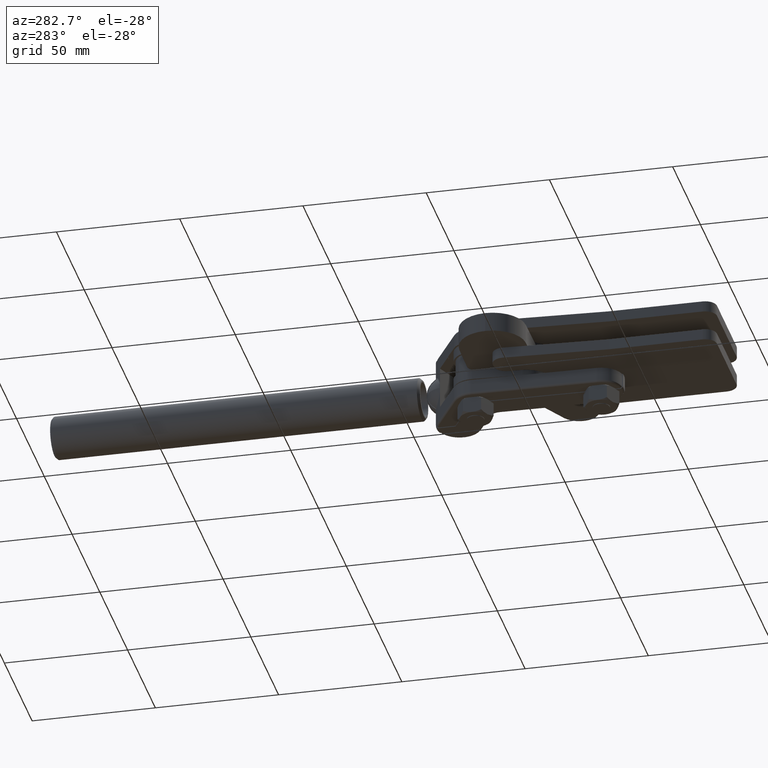
[diagram: clean part render]
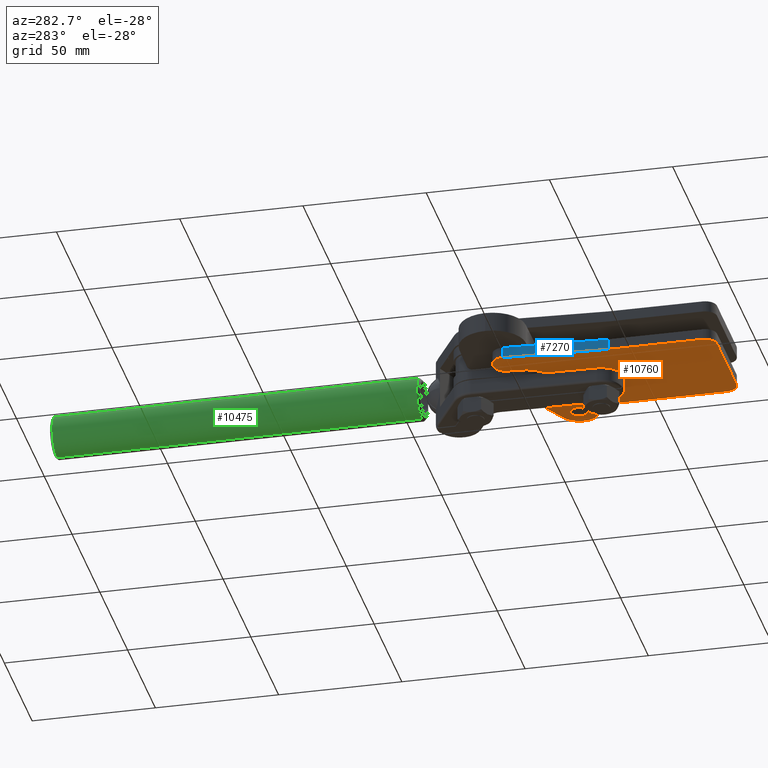
[diagram: same view with three faces highlighted in distinct colors, each labeled with its STEP entity id]
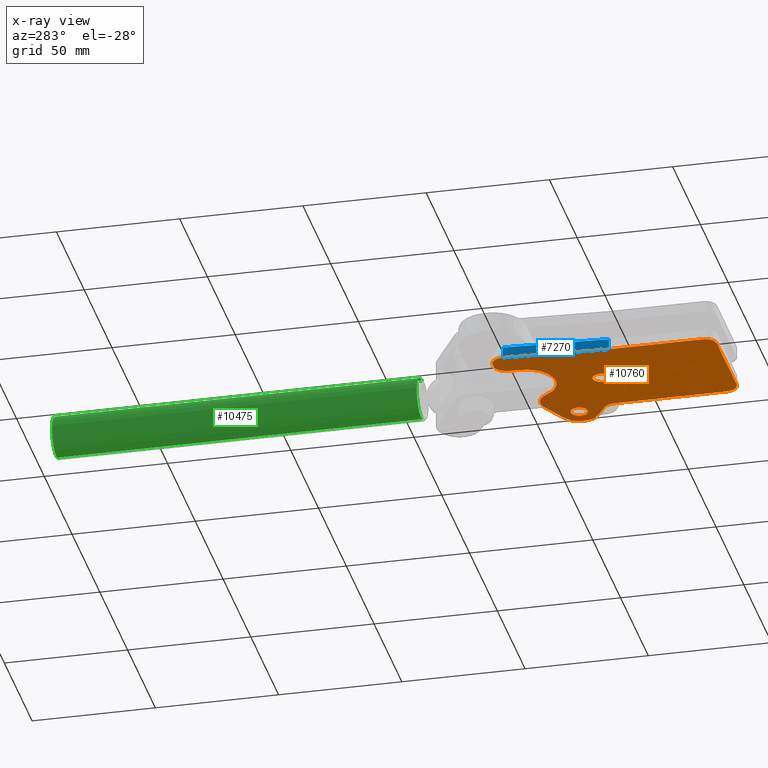
[diagram: x-ray of the same camera — body ghosted, the three highlighted faces saturated]
A machine part, auxiliary view with three faces highlighted in distinct colors.
The next image is the same camera in x-ray (body ghosted, the three faces saturated) — at least one of them is partly hidden behind the body in this view.
Their STEP definitions:

[orange] entity #10760 — the highlighted planar face has unit normal (0, 0, 1).
#86 = LINE ( 'NONE', #188, #7089 ) ;
#188 = CARTESIAN_POINT ( 'NONE',  ( -25.22318336174694400, 85.32189925550417800, -7.999999999999994700 ) ) ;
#212 = CARTESIAN_POINT ( 'NONE',  ( -13.74116381830509100, 85.86167978121476100, -7.999999999999994700 ) ) ;
#370 = DIRECTION ( 'NONE',  ( -1.000000000000000000, 0.0000000000000000000, 0.0000000000000000000 ) ) ;
#385 = DIRECTION ( 'NONE',  ( 0.0000000000000000000, 0.0000000000000000000, 1.000000000000000000 ) ) ;
#425 = CARTESIAN_POINT ( 'NONE',  ( 17.10181000258580400, 5.139080936063071400, -7.999999999999994700 ) ) ;
#475 = VECTOR ( 'NONE', #5244, 1000.000000000000100 ) ;
#528 = FACE_OUTER_BOUND ( 'NONE', #3657, .T. ) ;
#759 = VECTOR ( 'NONE', #5476, 1000.000000000000000 ) ;
#795 = ORIENTED_EDGE ( 'NONE', *, *, #9614, .F. ) ;
#854 = VERTEX_POINT ( 'NONE', #6194 ) ;
#855 = DIRECTION ( 'NONE',  ( 1.000000000000000000, 0.0000000000000000000, 0.0000000000000000000 ) ) ;
#858 = ORIENTED_EDGE ( 'NONE', *, *, #9278, .F. ) ;
#883 = DIRECTION ( 'NONE',  ( -0.0000000000000000000, -0.0000000000000000000, -1.000000000000000000 ) ) ;
#886 = CIRCLE ( 'NONE', #4379, 4.765655449276774600 ) ;
#907 = DIRECTION ( 'NONE',  ( 0.0000000000000000000, 0.0000000000000000000, 1.000000000000000000 ) ) ;
#924 = CARTESIAN_POINT ( 'NONE',  ( -18.09626604559854700, 4.864683064977837600, -7.999999999999996400 ) ) ;
#1150 = VERTEX_POINT ( 'NONE', #9547 ) ;
#1228 = VECTOR ( 'NONE', #4491, 1000.000000000000000 ) ;
#1252 = ORIENTED_EDGE ( 'NONE', *, *, #9390, .F. ) ;
#1257 = AXIS2_PLACEMENT_3D ( 'NONE', #1965, #907, #8664 ) ;
#1265 = DIRECTION ( 'NONE',  ( 1.000000000000000000, 0.0000000000000000000, -0.0000000000000000000 ) ) ;
#1285 = DIRECTION ( 'NONE',  ( 0.0000000000000000000, 0.0000000000000000000, 1.000000000000000000 ) ) ;
#1325 = CARTESIAN_POINT ( 'NONE',  ( -20.23095044539636000, 85.60000000000006500, -7.999999999999994700 ) ) ;
#1337 = AXIS2_PLACEMENT_3D ( 'NONE', #924, #883, #855 ) ;
#1379 = DIRECTION ( 'NONE',  ( -1.000000000000000000, 4.636317856435539100E-015, 0.0000000000000000000 ) ) ;
#1477 = LINE ( 'NONE', #10220, #6671 ) ;
#1507 = CARTESIAN_POINT ( 'NONE',  ( 3.485000000000014100, 51.10000000000005800, -7.999999999999994700 ) ) ;
#1526 = LINE ( 'NONE', #4069, #1228 ) ;
#1557 = PLANE ( 'NONE',  #6081 ) ;
#1674 = CARTESIAN_POINT ( 'NONE',  ( 22.13999999999999300, 5.000000000000024900, -7.999999999999994700 ) ) ;
#1844 = CIRCLE ( 'NONE', #9749, 3.484999999999998500 ) ;
#1965 = CARTESIAN_POINT ( 'NONE',  ( 1.387778780781445700E-014, 51.10000000000005800, -7.999999999999994700 ) ) ;
#2059 = ORIENTED_EDGE ( 'NONE', *, *, #8940, .T. ) ;
#2068 = ORIENTED_EDGE ( 'NONE', *, *, #9040, .F. ) ;
#2092 = DIRECTION ( 'NONE',  ( 1.000000000000000000, 0.0000000000000000000, 0.0000000000000000000 ) ) ;
#2237 = CARTESIAN_POINT ( 'NONE',  ( 25.90000000000001600, 65.90000000000006300, -7.999999999999994700 ) ) ;
#2359 = ORIENTED_EDGE ( 'NONE', *, *, #9015, .T. ) ;
#2390 = CARTESIAN_POINT ( 'NONE',  ( -18.73431149207793200, 90.60000000000003700, -7.999999999999994700 ) ) ;
#2406 = DIRECTION ( 'NONE',  ( 1.000000000000000000, 0.0000000000000000000, 0.0000000000000000000 ) ) ;
#2541 = CARTESIAN_POINT ( 'NONE',  ( 25.90000000000001600, 65.90000000000006300, -7.999999999999994700 ) ) ;
#2608 = AXIS2_PLACEMENT_3D ( 'NONE', #425, #385, #370 ) ;
#2801 = CIRCLE ( 'NONE', #2608, 5.040109319927548600 ) ;
#2804 = VERTEX_POINT ( 'NONE', #8529 ) ;
#2924 = LINE ( 'NONE', #5257, #475 ) ;
#3061 = VERTEX_POINT ( 'NONE', #10063 ) ;
#3064 = DIRECTION ( 'NONE',  ( -0.8762541809428534600, 0.4818491572890514200, 0.0000000000000000000 ) ) ;
#3069 = ORIENTED_EDGE ( 'NONE', *, *, #8979, .F. ) ;
#3077 = ORIENTED_EDGE ( 'NONE', *, *, #9561, .F. ) ;
#3081 = CIRCLE ( 'NONE', #10693, 8.000000000000028400 ) ;
#3213 = LINE ( 'NONE', #5587, #759 ) ;
#3257 = FACE_BOUND ( 'NONE', #4740, .T. ) ;
#3267 = ORIENTED_EDGE ( 'NONE', *, *, #9356, .F. ) ;
#3345 = CIRCLE ( 'NONE', #8946, 11.99999999999997300 ) ;
#3483 = CARTESIAN_POINT ( 'NONE',  ( -22.86000000000003900, 42.90000000000002700, -7.999999999999994700 ) ) ;
#3493 = VECTOR ( 'NONE', #1379, 1000.000000000000000 ) ;
#3594 = VERTEX_POINT ( 'NONE', #1674 ) ;
#3657 = EDGE_LOOP ( 'NONE', ( #3069, #11368, #2059, #6524, #4839, #2359, #3778, #8914, #7757, #2068, #5630, #3267, #1252, #858, #6944, #3077, #795, #10406 ) ) ;
#3778 = ORIENTED_EDGE ( 'NONE', *, *, #8014, .F. ) ;
#3841 = DIRECTION ( 'NONE',  ( -0.05233595624293762400, 0.9986295347545741700, -0.0000000000000000000 ) ) ;
#3975 = CIRCLE ( 'NONE', #7025, 4.999999999999971600 ) ;
#4066 = DIRECTION ( 'NONE',  ( 0.0000000000000000000, 0.0000000000000000000, 1.000000000000000000 ) ) ;
#4069 = CARTESIAN_POINT ( 'NONE',  ( 22.14000000000001800, 5.000000000000024900, -7.999999999999994700 ) ) ;
#4080 = DIRECTION ( 'NONE',  ( -1.000000000000000000, 0.0000000000000000000, 0.0000000000000000000 ) ) ;
#4095 = DIRECTION ( 'NONE',  ( -0.0000000000000000000, -0.0000000000000000000, -1.000000000000000000 ) ) ;
#4168 = CARTESIAN_POINT ( 'NONE',  ( -18.73431149207793200, 90.60000000000003700, -7.999999999999994700 ) ) ;
#4203 = EDGE_LOOP ( 'NONE', ( #6099, #10135 ) ) ;
#4215 = VECTOR ( 'NONE', #8673, 1000.000000000000000 ) ;
#4235 = VERTEX_POINT ( 'NONE', #9274 ) ;
#4266 = DIRECTION ( 'NONE',  ( 1.000000000000000000, 0.0000000000000000000, 0.0000000000000000000 ) ) ;
#4291 = DIRECTION ( 'NONE',  ( -0.0000000000000000000, -0.0000000000000000000, -1.000000000000000000 ) ) ;
#4307 = CARTESIAN_POINT ( 'NONE',  ( -18.09626604559854700, 4.864683064977837600, -7.999999999999996400 ) ) ;
#4358 = CARTESIAN_POINT ( 'NONE',  ( 30.43780133561243100, 59.31149796702514700, -7.999999999999994700 ) ) ;
#4379 = AXIS2_PLACEMENT_3D ( 'NONE', #4307, #4291, #4266 ) ;
#4405 = CARTESIAN_POINT ( 'NONE',  ( -20.23095044539636000, 85.60000000000006500, -7.999999999999994700 ) ) ;
#4459 = AXIS2_PLACEMENT_3D ( 'NONE', #4405, #4710, #7376 ) ;
#4491 = DIRECTION ( 'NONE',  ( 7.563231907314425800E-017, 1.000000000000000000, 0.0000000000000000000 ) ) ;
#4673 = VERTEX_POINT ( 'NONE', #7822 ) ;
#4710 = DIRECTION ( 'NONE',  ( 0.0000000000000000000, 0.0000000000000000000, 1.000000000000000000 ) ) ;
#4722 = CIRCLE ( 'NONE', #8198, 8.000000000000017800 ) ;
#4740 = EDGE_LOOP ( 'NONE', ( #8145, #5814 ) ) ;
#4839 = ORIENTED_EDGE ( 'NONE', *, *, #9222, .T. ) ;
#4932 = CARTESIAN_POINT ( 'NONE',  ( 22.41500000000001700, 65.90000000000006300, -7.999999999999994700 ) ) ;
#5023 = CARTESIAN_POINT ( 'NONE',  ( -25.23095044539633100, 85.60000000000006500, -7.999999999999994700 ) ) ;
#5244 = DIRECTION ( 'NONE',  ( 0.8235627541218609700, 0.5672251669515511200, 0.0000000000000000000 ) ) ;
#5257 = CARTESIAN_POINT ( 'NONE',  ( 24.16387416524221300, 54.99035866240751600, -7.999999999999994700 ) ) ;
#5298 = CARTESIAN_POINT ( 'NONE',  ( 19.75479325831245000, 78.40899901904610700, -7.999999999999994700 ) ) ;
#5313 = CARTESIAN_POINT ( 'NONE',  ( 29.75479325831242500, 72.91003344754288700, -7.999999999999994700 ) ) ;
#5434 = FACE_BOUND ( 'NONE', #4203, .T. ) ;
#5476 = DIRECTION ( 'NONE',  ( -1.000000000000000000, 0.0000000000000000000, 0.0000000000000000000 ) ) ;
#5587 = CARTESIAN_POINT ( 'NONE',  ( -20.23095044539636000, 0.1000000000000445000, -7.999999999999994700 ) ) ;
#5613 = DIRECTION ( 'NONE',  ( 1.000000000000000000, 0.0000000000000000000, 0.0000000000000000000 ) ) ;
#5616 = AXIS2_PLACEMENT_3D ( 'NONE', #7950, #4095, #4080 ) ;
#5630 = ORIENTED_EDGE ( 'NONE', *, *, #9333, .F. ) ;
#5684 = AXIS2_PLACEMENT_3D ( 'NONE', #9106, #4066, #5613 ) ;
#5814 = ORIENTED_EDGE ( 'NONE', *, *, #8172, .T. ) ;
#5954 = LINE ( 'NONE', #4168, #3493 ) ;
#6081 = AXIS2_PLACEMENT_3D ( 'NONE', #1325, #1285, #1265 ) ;
#6099 = ORIENTED_EDGE ( 'NONE', *, *, #7464, .F. ) ;
#6116 = AXIS2_PLACEMENT_3D ( 'NONE', #2237, #10047, #10944 ) ;
#6194 = CARTESIAN_POINT ( 'NONE',  ( -20.23095044539636000, 90.60000000000003700, -7.999999999999994700 ) ) ;
#6281 = VERTEX_POINT ( 'NONE', #4358 ) ;
#6447 = CIRCLE ( 'NONE', #6116, 3.484999999999998500 ) ;
#6524 = ORIENTED_EDGE ( 'NONE', *, *, #9583, .T. ) ;
#6565 = CIRCLE ( 'NONE', #1257, 3.485000000000000300 ) ;
#6671 = VECTOR ( 'NONE', #3064, 1000.000000000000200 ) ;
#6882 = VERTEX_POINT ( 'NONE', #4932 ) ;
#6938 = CIRCLE ( 'NONE', #11493, 3.485000000000000300 ) ;
#6944 = ORIENTED_EDGE ( 'NONE', *, *, #11133, .F. ) ;
#6946 = VERTEX_POINT ( 'NONE', #3483 ) ;
#6952 = EDGE_CURVE ( 'NONE', #6882, #7318, #6447, .T. ) ;
#7025 = AXIS2_PLACEMENT_3D ( 'NONE', #9700, #10040, #2406 ) ;
#7089 = VECTOR ( 'NONE', #7669, 1000.000000000000100 ) ;
#7163 = CARTESIAN_POINT ( 'NONE',  ( 29.38500000000001600, 65.90000000000006300, -7.999999999999994700 ) ) ;
#7318 = VERTEX_POINT ( 'NONE', #7163 ) ;
#7320 = CARTESIAN_POINT ( 'NONE',  ( -22.86000000000004200, 85.60000000000006500, -7.999999999999994700 ) ) ;
#7374 = VERTEX_POINT ( 'NONE', #5313 ) ;
#7376 = DIRECTION ( 'NONE',  ( 1.000000000000000000, 0.0000000000000000000, 0.0000000000000000000 ) ) ;
#7381 = CIRCLE ( 'NONE', #4459, 4.999999999999971600 ) ;
#7464 = EDGE_CURVE ( 'NONE', #7318, #6882, #1844, .T. ) ;
#7493 = DIRECTION ( 'NONE',  ( 1.000000000000000000, 0.0000000000000000000, 0.0000000000000000000 ) ) ;
#7649 = DIRECTION ( 'NONE',  ( 0.0000000000000000000, 0.0000000000000000000, 1.000000000000000000 ) ) ;
#7667 = CARTESIAN_POINT ( 'NONE',  ( 1.387778780781445700E-014, 51.10000000000005800, -7.999999999999994700 ) ) ;
#7669 = DIRECTION ( 'NONE',  ( -0.05562044978973303100, 0.9984519846067649900, 0.0000000000000000000 ) ) ;
#7757 = ORIENTED_EDGE ( 'NONE', *, *, #9141, .F. ) ;
#7822 = CARTESIAN_POINT ( 'NONE',  ( -13.74116381830506800, 85.86167978121476100, -7.999999999999994700 ) ) ;
#7950 = CARTESIAN_POINT ( 'NONE',  ( 26.82547973616696200, 51.12593348861386700, -7.999999999999994700 ) ) ;
#8014 = EDGE_CURVE ( 'NONE', #8303, #1150, #3975, .T. ) ;
#8034 = CARTESIAN_POINT ( 'NONE',  ( 22.14000000000002200, 50.87254489179821300, -7.999999999999994700 ) ) ;
#8117 = DIRECTION ( 'NONE',  ( -0.0000000000000000000, -0.0000000000000000000, -1.000000000000000000 ) ) ;
#8124 = CIRCLE ( 'NONE', #5616, 4.692326303554289700 ) ;
#8141 = CIRCLE ( 'NONE', #1337, 4.765655449276774600 ) ;
#8145 = ORIENTED_EDGE ( 'NONE', *, *, #9203, .T. ) ;
#8172 = EDGE_CURVE ( 'NONE', #3061, #9792, #6565, .T. ) ;
#8184 = VERTEX_POINT ( 'NONE', #10005 ) ;
#8198 = AXIS2_PLACEMENT_3D ( 'NONE', #10617, #10596, #10585 ) ;
#8303 = VERTEX_POINT ( 'NONE', #5023 ) ;
#8394 = VECTOR ( 'NONE', #3841, 1000.000000000000200 ) ;
#8529 = CARTESIAN_POINT ( 'NONE',  ( -18.00000000000001400, 0.1000000000000514400, -7.999999999999996400 ) ) ;
#8584 = VERTEX_POINT ( 'NONE', #8034 ) ;
#8664 = DIRECTION ( 'NONE',  ( 1.000000000000000000, 0.0000000000000000000, 0.0000000000000000000 ) ) ;
#8673 = DIRECTION ( 'NONE',  ( 0.0000000000000000000, 1.000000000000000000, 0.0000000000000000000 ) ) ;
#8914 = ORIENTED_EDGE ( 'NONE', *, *, #9001, .F. ) ;
#8918 = LINE ( 'NONE', #7320, #4215 ) ;
#8940 = EDGE_CURVE ( 'NONE', #2804, #11330, #8141, .T. ) ;
#8946 = AXIS2_PLACEMENT_3D ( 'NONE', #11108, #11095, #11077 ) ;
#8979 = EDGE_CURVE ( 'NONE', #4235, #3594, #2801, .T. ) ;
#9001 = EDGE_CURVE ( 'NONE', #854, #8303, #7381, .T. ) ;
#9015 = EDGE_CURVE ( 'NONE', #6946, #1150, #86, .T. ) ;
#9019 = CARTESIAN_POINT ( 'NONE',  ( -22.86192149487532200, 4.864683064977837600, -7.999999999999996400 ) ) ;
#9040 = EDGE_CURVE ( 'NONE', #4673, #9283, #9349, .T. ) ;
#9106 = CARTESIAN_POINT ( 'NONE',  ( -18.73431149207788600, 85.60000000000006500, -7.999999999999994700 ) ) ;
#9141 = EDGE_CURVE ( 'NONE', #9283, #854, #5954, .T. ) ;
#9203 = EDGE_CURVE ( 'NONE', #9792, #3061, #6938, .T. ) ;
#9222 = EDGE_CURVE ( 'NONE', #10111, #6946, #8918, .T. ) ;
#9274 = CARTESIAN_POINT ( 'NONE',  ( 17.00000000000001800, 0.1000000000000514400, -7.999999999999996400 ) ) ;
#9278 = EDGE_CURVE ( 'NONE', #7374, #11013, #1477, .T. ) ;
#9283 = VERTEX_POINT ( 'NONE', #2390 ) ;
#9333 = EDGE_CURVE ( 'NONE', #9861, #4673, #10147, .T. ) ;
#9349 = CIRCLE ( 'NONE', #5684, 4.999999999999945800 ) ;
#9356 = EDGE_CURVE ( 'NONE', #10086, #9861, #3345, .T. ) ;
#9390 = EDGE_CURVE ( 'NONE', #11013, #10086, #3081, .T. ) ;
#9544 = EDGE_CURVE ( 'NONE', #4235, #2804, #3213, .T. ) ;
#9547 = CARTESIAN_POINT ( 'NONE',  ( -25.22409811916919500, 85.33832021878534100, -7.999999999999994700 ) ) ;
#9561 = EDGE_CURVE ( 'NONE', #8184, #6281, #2924, .T. ) ;
#9583 = EDGE_CURVE ( 'NONE', #11330, #10111, #886, .T. ) ;
#9614 = EDGE_CURVE ( 'NONE', #8584, #8184, #8124, .T. ) ;
#9700 = CARTESIAN_POINT ( 'NONE',  ( -20.23095044539636000, 85.60000000000006500, -7.999999999999994700 ) ) ;
#9749 = AXIS2_PLACEMENT_3D ( 'NONE', #2541, #8117, #2092 ) ;
#9792 = VERTEX_POINT ( 'NONE', #1507 ) ;
#9861 = VERTEX_POINT ( 'NONE', #10445 ) ;
#10005 = CARTESIAN_POINT ( 'NONE',  ( 24.16387416524221300, 54.99035866240751600, -7.999999999999994700 ) ) ;
#10040 = DIRECTION ( 'NONE',  ( 0.0000000000000000000, 0.0000000000000000000, 1.000000000000000000 ) ) ;
#10047 = DIRECTION ( 'NONE',  ( -0.0000000000000000000, -0.0000000000000000000, -1.000000000000000000 ) ) ;
#10063 = CARTESIAN_POINT ( 'NONE',  ( -3.484999999999986600, 51.10000000000005800, -7.999999999999994700 ) ) ;
#10086 = VERTEX_POINT ( 'NONE', #10376 ) ;
#10111 = VERTEX_POINT ( 'NONE', #10244 ) ;
#10135 = ORIENTED_EDGE ( 'NONE', *, *, #6952, .F. ) ;
#10147 = LINE ( 'NONE', #212, #8394 ) ;
#10220 = CARTESIAN_POINT ( 'NONE',  ( 29.75479325831242500, 72.91003344754288700, -7.999999999999994700 ) ) ;
#10244 = CARTESIAN_POINT ( 'NONE',  ( -22.86000000000004200, 5.000000000000060400, -7.999999999999994700 ) ) ;
#10376 = CARTESIAN_POINT ( 'NONE',  ( 8.939999999999990600, 75.34337934290196900, -7.999999999999994700 ) ) ;
#10406 = ORIENTED_EDGE ( 'NONE', *, *, #10498, .F. ) ;
#10445 = CARTESIAN_POINT ( 'NONE',  ( -13.49999999999998600, 81.26000000000003400, -7.999999999999994700 ) ) ;
#10498 = EDGE_CURVE ( 'NONE', #3594, #8584, #1526, .T. ) ;
#10585 = DIRECTION ( 'NONE',  ( 1.000000000000000000, 0.0000000000000000000, 0.0000000000000000000 ) ) ;
#10596 = DIRECTION ( 'NONE',  ( 0.0000000000000000000, 0.0000000000000000000, 1.000000000000000000 ) ) ;
#10617 = CARTESIAN_POINT ( 'NONE',  ( 25.90000000000000900, 65.90000000000004800, -7.999999999999994700 ) ) ;
#10693 = AXIS2_PLACEMENT_3D ( 'NONE', #10830, #10816, #10803 ) ;
#10760 = ADVANCED_FACE ( 'NONE', ( #3257, #5434, #528 ), #1557, .F. ) ;
#10803 = DIRECTION ( 'NONE',  ( 1.000000000000000000, 0.0000000000000000000, 0.0000000000000000000 ) ) ;
#10816 = DIRECTION ( 'NONE',  ( 0.0000000000000000000, 0.0000000000000000000, 1.000000000000000000 ) ) ;
#10830 = CARTESIAN_POINT ( 'NONE',  ( 15.90000000000002500, 71.39896557150325400, -7.999999999999994700 ) ) ;
#10944 = DIRECTION ( 'NONE',  ( 1.000000000000000000, 0.0000000000000000000, 0.0000000000000000000 ) ) ;
#11013 = VERTEX_POINT ( 'NONE', #5298 ) ;
#11077 = DIRECTION ( 'NONE',  ( 1.000000000000000000, 0.0000000000000000000, 0.0000000000000000000 ) ) ;
#11095 = DIRECTION ( 'NONE',  ( -0.0000000000000000000, -0.0000000000000000000, -1.000000000000000000 ) ) ;
#11108 = CARTESIAN_POINT ( 'NONE',  ( -1.500000000000003300, 81.26000000000003400, -7.999999999999994700 ) ) ;
#11133 = EDGE_CURVE ( 'NONE', #6281, #7374, #4722, .T. ) ;
#11330 = VERTEX_POINT ( 'NONE', #9019 ) ;
#11368 = ORIENTED_EDGE ( 'NONE', *, *, #9544, .T. ) ;
#11493 = AXIS2_PLACEMENT_3D ( 'NONE', #7667, #7649, #7493 ) ;

[blue] entity #7270 — the highlighted planar face has unit normal (0.9985, 0.0556, 0).
#86 = LINE ( 'NONE', #188, #7089 ) ;
#188 = CARTESIAN_POINT ( 'NONE',  ( -25.22318336174694400, 85.32189925550417800, -7.999999999999994700 ) ) ;
#744 = VERTEX_POINT ( 'NONE', #7178 ) ;
#1150 = VERTEX_POINT ( 'NONE', #9547 ) ;
#1890 = VERTEX_POINT ( 'NONE', #7580 ) ;
#2044 = EDGE_LOOP ( 'NONE', ( #4167, #10681, #7590, #2351 ) ) ;
#2324 = CARTESIAN_POINT ( 'NONE',  ( -22.86000000000004200, 42.90000000000002700, 131.7494818704026300 ) ) ;
#2351 = ORIENTED_EDGE ( 'NONE', *, *, #9015, .F. ) ;
#3483 = CARTESIAN_POINT ( 'NONE',  ( -22.86000000000003900, 42.90000000000002700, -7.999999999999994700 ) ) ;
#4057 = VECTOR ( 'NONE', #6433, 1000.000000000000100 ) ;
#4167 = ORIENTED_EDGE ( 'NONE', *, *, #7637, .F. ) ;
#4448 = FACE_OUTER_BOUND ( 'NONE', #2044, .T. ) ;
#6003 = VECTOR ( 'NONE', #9430, 1000.000000000000000 ) ;
#6291 = VECTOR ( 'NONE', #10538, 1000.000000000000000 ) ;
#6406 = DIRECTION ( 'NONE',  ( -0.05562044978973303100, 0.9984519846067649900, 0.0000000000000000000 ) ) ;
#6433 = DIRECTION ( 'NONE',  ( -0.05562044978973303100, 0.9984519846067649900, 0.0000000000000000000 ) ) ;
#6440 = CARTESIAN_POINT ( 'NONE',  ( -25.22318336174694400, 85.32189925550417800, -3.499999999999995600 ) ) ;
#6526 = LINE ( 'NONE', #6440, #4057 ) ;
#6946 = VERTEX_POINT ( 'NONE', #3483 ) ;
#7089 = VECTOR ( 'NONE', #7669, 1000.000000000000100 ) ;
#7178 = CARTESIAN_POINT ( 'NONE',  ( -22.86000000000003900, 42.90000000000002700, -3.499999999999995600 ) ) ;
#7270 = ADVANCED_FACE ( 'NONE', ( #4448 ), #11290, .F. ) ;
#7561 = EDGE_CURVE ( 'NONE', #1890, #1150, #8570, .T. ) ;
#7580 = CARTESIAN_POINT ( 'NONE',  ( -25.22409811916919500, 85.33832021878534100, -3.499999999999995600 ) ) ;
#7590 = ORIENTED_EDGE ( 'NONE', *, *, #7561, .T. ) ;
#7637 = EDGE_CURVE ( 'NONE', #744, #6946, #10597, .T. ) ;
#7669 = DIRECTION ( 'NONE',  ( -0.05562044978973303100, 0.9984519846067649900, 0.0000000000000000000 ) ) ;
#8570 = LINE ( 'NONE', #9375, #6291 ) ;
#9015 = EDGE_CURVE ( 'NONE', #6946, #1150, #86, .T. ) ;
#9375 = CARTESIAN_POINT ( 'NONE',  ( -25.22409811916919500, 85.33832021878534100, -3.499999999999995600 ) ) ;
#9430 = DIRECTION ( 'NONE',  ( 0.0000000000000000000, 0.0000000000000000000, -1.000000000000000000 ) ) ;
#9439 = DIRECTION ( 'NONE',  ( 0.9984519846067651000, 0.05562044978973303800, 0.0000000000000000000 ) ) ;
#9464 = EDGE_CURVE ( 'NONE', #744, #1890, #6526, .T. ) ;
#9547 = CARTESIAN_POINT ( 'NONE',  ( -25.22409811916919500, 85.33832021878534100, -7.999999999999994700 ) ) ;
#9954 = AXIS2_PLACEMENT_3D ( 'NONE', #10690, #9439, #6406 ) ;
#10538 = DIRECTION ( 'NONE',  ( -0.0000000000000000000, -0.0000000000000000000, -1.000000000000000000 ) ) ;
#10597 = LINE ( 'NONE', #2324, #6003 ) ;
#10681 = ORIENTED_EDGE ( 'NONE', *, *, #9464, .T. ) ;
#10690 = CARTESIAN_POINT ( 'NONE',  ( -25.22409811916919500, 85.33832021878534100, 131.7494818704026300 ) ) ;
#11290 = PLANE ( 'NONE',  #9954 ) ;

[green] entity #10475 — the highlighted cylindrical surface (edge-blend (fillet) strip) has radius 8.65 mm, axis along (-0, -1, -0).
#92 = DIRECTION ( 'NONE',  ( 0.0000000000000000000, -1.000000000000000000, 0.0000000000000000000 ) ) ;
#117 = LINE ( 'NONE', #3606, #2260 ) ;
#1030 = AXIS2_PLACEMENT_3D ( 'NONE', #2475, #92, #6829 ) ;
#1054 = VERTEX_POINT ( 'NONE', #10233 ) ;
#1334 = CARTESIAN_POINT ( 'NONE',  ( 0.0000000000000000000, 150.0000000000000000, -8.649999999999998600 ) ) ;
#1685 = EDGE_CURVE ( 'NONE', #1054, #8798, #5091, .T. ) ;
#1696 = DIRECTION ( 'NONE',  ( -0.0000000000000000000, -1.000000000000000000, -0.0000000000000000000 ) ) ;
#2095 = VERTEX_POINT ( 'NONE', #8486 ) ;
#2160 = VECTOR ( 'NONE', #1696, 1000.000000000000000 ) ;
#2260 = VECTOR ( 'NONE', #9733, 1000.000000000000000 ) ;
#2475 = CARTESIAN_POINT ( 'NONE',  ( 0.0000000000000000000, 149.0000000000000000, 0.0000000000000000000 ) ) ;
#2857 = ORIENTED_EDGE ( 'NONE', *, *, #8105, .F. ) ;
#3305 = LINE ( 'NONE', #1334, #2160 ) ;
#3606 = CARTESIAN_POINT ( 'NONE',  ( 1.059319481262460400E-015, 150.0000000000000000, 8.649999999999998600 ) ) ;
#4165 = EDGE_LOOP ( 'NONE', ( #2857, #4304, #4683, #9933 ) ) ;
#4304 = ORIENTED_EDGE ( 'NONE', *, *, #1685, .T. ) ;
#4543 = CARTESIAN_POINT ( 'NONE',  ( 0.0000000000000000000, 150.0000000000000000, 0.0000000000000000000 ) ) ;
#4571 = DIRECTION ( 'NONE',  ( -0.0000000000000000000, -1.000000000000000000, -0.0000000000000000000 ) ) ;
#4664 = DIRECTION ( 'NONE',  ( 0.0000000000000000000, 0.0000000000000000000, -1.000000000000000000 ) ) ;
#4683 = ORIENTED_EDGE ( 'NONE', *, *, #5543, .T. ) ;
#4797 = DIRECTION ( 'NONE',  ( 0.0000000000000000000, 0.0000000000000000000, 1.000000000000000000 ) ) ;
#4838 = CARTESIAN_POINT ( 'NONE',  ( 0.0000000000000000000, 1.000000000000000900, 0.0000000000000000000 ) ) ;
#4887 = FACE_OUTER_BOUND ( 'NONE', #4165, .T. ) ;
#4941 = AXIS2_PLACEMENT_3D ( 'NONE', #4838, #8470, #4797 ) ;
#5038 = CARTESIAN_POINT ( 'NONE',  ( 0.0000000000000000000, 149.0000000000000000, -8.649999999999998600 ) ) ;
#5091 = CIRCLE ( 'NONE', #1030, 8.649999999999998600 ) ;
#5458 = CARTESIAN_POINT ( 'NONE',  ( 0.0000000000000000000, 1.000000000000000900, -8.649999999999998600 ) ) ;
#5543 = EDGE_CURVE ( 'NONE', #8798, #11411, #3305, .T. ) ;
#6829 = DIRECTION ( 'NONE',  ( 0.0000000000000000000, 0.0000000000000000000, 1.000000000000000000 ) ) ;
#7657 = CIRCLE ( 'NONE', #4941, 8.649999999999998600 ) ;
#8105 = EDGE_CURVE ( 'NONE', #1054, #2095, #117, .T. ) ;
#8470 = DIRECTION ( 'NONE',  ( -0.0000000000000000000, 1.000000000000000000, -0.0000000000000000000 ) ) ;
#8486 = CARTESIAN_POINT ( 'NONE',  ( 1.059319481262460400E-015, 1.000000000000000900, 8.649999999999998600 ) ) ;
#8796 = EDGE_CURVE ( 'NONE', #11411, #2095, #7657, .T. ) ;
#8798 = VERTEX_POINT ( 'NONE', #5038 ) ;
#9733 = DIRECTION ( 'NONE',  ( -0.0000000000000000000, -1.000000000000000000, -0.0000000000000000000 ) ) ;
#9933 = ORIENTED_EDGE ( 'NONE', *, *, #8796, .T. ) ;
#10233 = CARTESIAN_POINT ( 'NONE',  ( 1.059319481262460400E-015, 149.0000000000000000, 8.649999999999998600 ) ) ;
#10475 = ADVANCED_FACE ( 'NONE', ( #4887 ), #11544, .T. ) ;
#10557 = AXIS2_PLACEMENT_3D ( 'NONE', #4543, #4571, #4664 ) ;
#11411 = VERTEX_POINT ( 'NONE', #5458 ) ;
#11544 = CYLINDRICAL_SURFACE ( 'NONE', #10557, 8.649999999999998600 ) ;